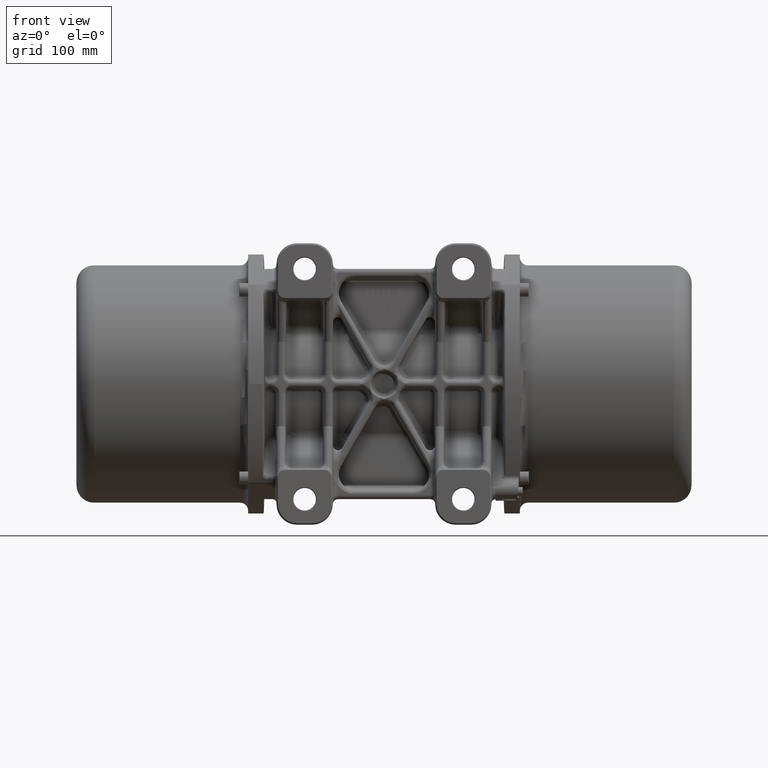
[diagram: clean part render]
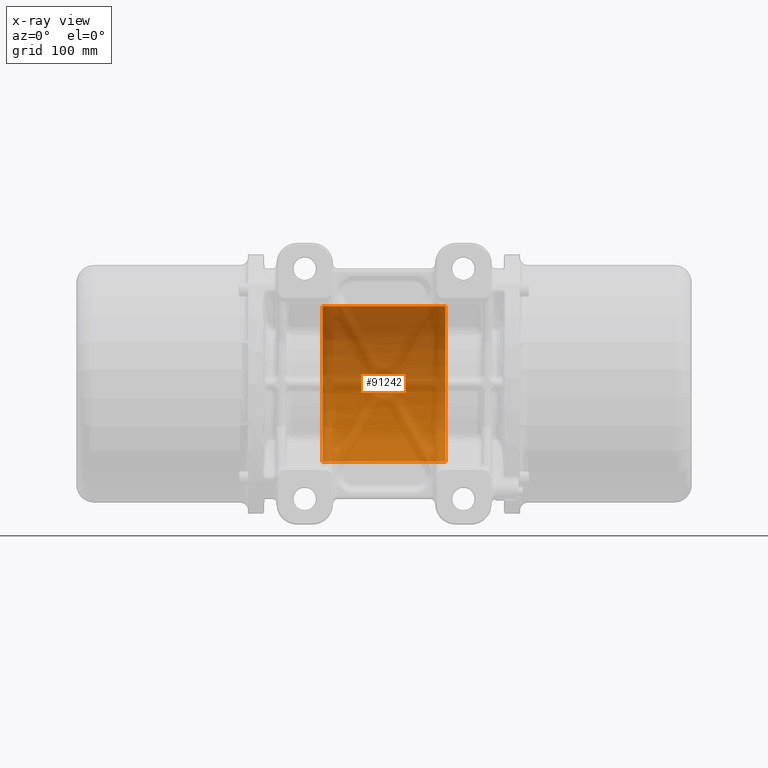
[diagram: x-ray — body ghosted, one internal face saturated and labeled with its STEP entity id]
A machine part, front view, then the same camera in x-ray: the body is ghosted and one INTERNAL B-rep face — a face not visible from any outside direction — is saturated and labeled: STEP entity #91242.
In plain terms, the highlighted cylindrical surface (partial cylindrical patch) has radius 76 mm, axis along (-1, -0, -0).
Its self-contained STEP definition (entity closure, byte-faithful):
#6699 = ORIENTED_EDGE ( 'NONE', *, *, #82709, .T. ) ;
#7384 = CARTESIAN_POINT ( 'NONE',  ( 60.00000000000000000, -1.812981814715856000E-015, 76.00000000002080500 ) ) ;
#12414 = ORIENTED_EDGE ( 'NONE', *, *, #114634, .T. ) ;
#12522 = AXIS2_PLACEMENT_3D ( 'NONE', #33347, #101975, #32852 ) ;
#17086 = CARTESIAN_POINT ( 'NONE',  ( 60.00000000000000000, 73.94098999857870100, 17.57071421400005200 ) ) ;
#17148 = EDGE_CURVE ( 'NONE', #131699, #110486, #82804, .T. ) ;
#20862 = CARTESIAN_POINT ( 'NONE',  ( 60.00000000000000000, 0.0000000000000000000, 0.0000000000000000000 ) ) ;
#24242 = AXIS2_PLACEMENT_3D ( 'NONE', #20862, #100408, #146165 ) ;
#27254 = CARTESIAN_POINT ( 'NONE',  ( 60.00000000000000000, -5.816382098178249700E-009, -2.182955205487499800E-009 ) ) ;
#27325 = AXIS2_PLACEMENT_3D ( 'NONE', #27254, #119255, #49616 ) ;
#27657 = AXIS2_PLACEMENT_3D ( 'NONE', #142085, #119699, #53973 ) ;
#32852 = DIRECTION ( 'NONE',  ( 0.0000000000000000000, 0.0000000000000000000, 1.000000000000000000 ) ) ;
#33347 = CARTESIAN_POINT ( 'NONE',  ( 60.00000000000000000, 4.681435333615910100E-032, 5.301589017841828900E-032 ) ) ;
#40915 = CYLINDRICAL_SURFACE ( 'NONE', #24242, 76.00000000002080500 ) ;
#43811 = EDGE_CURVE ( 'NONE', #48862, #122367, #117774, .T. ) ;
#44308 = CARTESIAN_POINT ( 'NONE',  ( 60.00000000000000000, 9.307315673522431900E-015, -76.00000000002080500 ) ) ;
#44662 = CARTESIAN_POINT ( 'NONE',  ( -60.00000000000000000, 7.494333858806575500E-015, -76.00000000002080500 ) ) ;
#45395 = CIRCLE ( 'NONE', #27325, 76.00000000561610100 ) ;
#48862 = VERTEX_POINT ( 'NONE', #104879 ) ;
#49616 = DIRECTION ( 'NONE',  ( -2.191229653703517300E-015, -1.000000000000000000, 0.0000000000000000000 ) ) ;
#50099 = EDGE_CURVE ( 'NONE', #111603, #48862, #66081, .T. ) ;
#53973 = DIRECTION ( 'NONE',  ( 0.0000000000000000000, 0.0000000000000000000, 1.000000000000000000 ) ) ;
#62398 = EDGE_CURVE ( 'NONE', #110486, #122367, #109732, .T. ) ;
#66081 = LINE ( 'NONE', #129187, #134369 ) ;
#71195 = CARTESIAN_POINT ( 'NONE',  ( -60.00000000000000000, -3.625963629431710500E-015, -4.106298087437439800E-015 ) ) ;
#71667 = VERTEX_POINT ( 'NONE', #17086 ) ;
#82709 = EDGE_CURVE ( 'NONE', #71667, #131699, #45395, .T. ) ;
#82804 = CIRCLE ( 'NONE', #27657, 76.00000000002080500 ) ;
#89574 = CARTESIAN_POINT ( 'NONE',  ( 60.00000000000000000, 7.494333858806575500E-015, -76.00000000002080500 ) ) ;
#90632 = DIRECTION ( 'NONE',  ( -1.000000000000000000, -3.021636357859759900E-017, -3.421915072864530100E-017 ) ) ;
#91242 = ADVANCED_FACE ( 'NONE', ( #108490 ), #40915, .T. ) ;
#91948 = VECTOR ( 'NONE', #90632, 1000.000000000000000 ) ;
#95670 = EDGE_LOOP ( 'NONE', ( #142502, #127028, #142658, #100915, #12414, #6699 ) ) ;
#98382 = CARTESIAN_POINT ( 'NONE',  ( 60.00000000000000000, 73.43696034826530200, -19.57071421413390100 ) ) ;
#100408 = DIRECTION ( 'NONE',  ( -1.000000000000000000, -3.021636357859759900E-017, -3.421915072864530100E-017 ) ) ;
#100915 = ORIENTED_EDGE ( 'NONE', *, *, #50099, .F. ) ;
#101975 = DIRECTION ( 'NONE',  ( -1.000000000000000000, -3.021636357859759900E-017, -3.421915072864530100E-017 ) ) ;
#104879 = CARTESIAN_POINT ( 'NONE',  ( -60.00000000000000000, -3.625963629431710500E-015, 76.00000000002080500 ) ) ;
#105489 = DIRECTION ( 'NONE',  ( 0.0000000000000000000, 0.0000000000000000000, 1.000000000000000000 ) ) ;
#108490 = FACE_OUTER_BOUND ( 'NONE', #95670, .T. ) ;
#109732 = LINE ( 'NONE', #44308, #91948 ) ;
#110486 = VERTEX_POINT ( 'NONE', #89574 ) ;
#111603 = VERTEX_POINT ( 'NONE', #7384 ) ;
#113280 = AXIS2_PLACEMENT_3D ( 'NONE', #71195, #139796, #105489 ) ;
#114634 = EDGE_CURVE ( 'NONE', #111603, #71667, #136089, .T. ) ;
#117264 = DIRECTION ( 'NONE',  ( -1.000000000000000000, -3.021636357859759900E-017, -3.421915072864530100E-017 ) ) ;
#117774 = CIRCLE ( 'NONE', #113280, 76.00000000002080500 ) ;
#119255 = DIRECTION ( 'NONE',  ( -1.000000000000000000, 2.193751344756595300E-015, -2.977041458540139400E-017 ) ) ;
#119699 = DIRECTION ( 'NONE',  ( -1.000000000000000000, -3.021636357859759900E-017, -3.421915072864530100E-017 ) ) ;
#122367 = VERTEX_POINT ( 'NONE', #44662 ) ;
#127028 = ORIENTED_EDGE ( 'NONE', *, *, #62398, .T. ) ;
#129187 = CARTESIAN_POINT ( 'NONE',  ( 60.00000000000000000, 0.0000000000000000000, 76.00000000002080500 ) ) ;
#131699 = VERTEX_POINT ( 'NONE', #98382 ) ;
#134369 = VECTOR ( 'NONE', #117264, 1000.000000000000000 ) ;
#136089 = CIRCLE ( 'NONE', #12522, 76.00000000002080500 ) ;
#139796 = DIRECTION ( 'NONE',  ( -1.000000000000000000, -3.021636357859759900E-017, -3.421915072864530100E-017 ) ) ;
#142085 = CARTESIAN_POINT ( 'NONE',  ( 60.00000000000000000, 4.681435333615910100E-032, 5.301589017841828900E-032 ) ) ;
#142502 = ORIENTED_EDGE ( 'NONE', *, *, #17148, .T. ) ;
#142658 = ORIENTED_EDGE ( 'NONE', *, *, #43811, .F. ) ;
#146165 = DIRECTION ( 'NONE',  ( 0.0000000000000000000, 0.0000000000000000000, 1.000000000000000000 ) ) ;